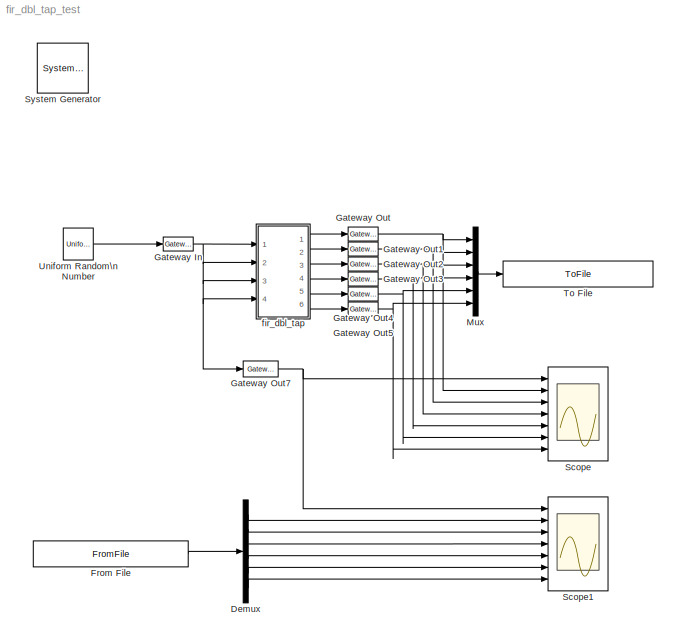
MODEL fir_dbl_tap_test
KIND model
BLOCK [Reference]  System Generator  REF=xbsIndex_r4/ System Generator
  AttributesFormatString = System\\nGenerator
  FunctionWithSeparateData = off
  Ports = []
  RTWMemSecDataConstants = Inherit from model
  RTWMemSecDataInternal = Inherit from model
  RTWMemSecDataParameters = Inherit from model
  RTWMemSecFuncExecute = Inherit from model
  RTWMemSecFuncInitTerm = Inherit from model
  ShowPortLabels = FromPortIcon
  SourceBlock = xbsIndex_r4/ System Generator
  SourceType = Xilinx System Generator Block
  SystemSampleTime = -1
  Tag = genX
  UserData = DataTag0
  UserDataPersistent = on
  block_type = sysgen
  block_version = 10.1.1
  clock_wrapper = Clock Enables
  core_generation = According to Block Masks
  dbl_ovrd = According to Block Masks
  dcm_input_clock_period = 100
  deprecated_control = off
  directory = ./netlist
  eval_field = 0
  has_advanced_control = 0
  incr_netlist = off
  infoedit = System Generator
  package = ff668
  part = xc4vsx35
  run_coregen = off
  sg_icon_stat = 51,50,-1,-1,red,beige,0,07734,right
  sg_mask_display = fprintf('','COMMENT: begin icon graphics');\npatch([0 51 51 0 ],[0 0 50 50 ],[0.93 0.92 0.86]);\npatch([12 4 16 4 12 25 29 33 47 36 25 17 29 17 25 36 47 33 29 25 12 ],[5 13 25 37 45 45 41 45 45 34 45 37 25 13 5 16 5 5 9 5 5 ],[0.6 0.2 0.25]);\nplot([0 51 51 0 0 ],[0 0 50 50 0 ]);\nfprintf('','COMMENT: end icon graphics');\nfprintf('','COMMENT: begin icon text');\nfprintf('','COMMENT: end icon text...<+5ch>
  sggui_pos = -1,-1,-1,-1
  simulink_period = 1
  speed = -10
  synthesis_tool = XST
  sysclk_period = 100
  testbench = off
  trim_vbits = Everywhere in SubSystem
  xilinxfamily = Virtex4
BLOCK [Demux] Demux
  DisplayOption = bar
  Outputs = 6
  Ports = [1, 6]
BLOCK [FromFile] From File
  FileName = fir_dbl_tap_test_reference.mat
  SampleTime = 1
BLOCK [Reference] Gateway In  REF=xbsIndex_r4/Gateway In
  LOCs = {}
  Ports = [1, 1]
  SourceBlock = xbsIndex_r4/Gateway In
  SourceType = Xilinx Gateway In Block
  arith_type = Signed  (2's comp)
  bin_pt = 15
  block_type = gatewayin
  block_version = 10.1.1
  dbl_ovrd = off
  has_advanced_control = 0
  hdl_port = on
  infoedit = Gateway in block.  Converts inputs of type Simulink integer, double and fixed point to  Xilinx fixed point type.<P><P>Hardware notes:  In hardware these blocks become top level input ports.
  locs_specified = off
  n_bits = 16
  overflow = Wrap
  period = 1
  quantization = Truncate
  sg_icon_stat = 30,14,1,1,white,yellow,0,00d3666e,right,
  sg_mask_display = fprintf('','COMMENT: begin icon graphics');\npatch([0 1 1 0 ],[0 0 1 1 ],[0.95 0.93 0.65]);\npatch([0.366667 0.3 0.4 0.3 0.366667 0.5 0.533333 0.566667 0.7 0.6 0.5 0.433333 0.533333 0.433333 0.5 0.6 0.7 0.566667 0.533333 0.5 0.366667 ],[0.142857 0.285714 0.5 0.714286 0.857143 0.857143 0.785714 0.857143 0.857143 0.642857 0.857143 0.714286 0.5 0.285714 0.142857 0.357143 0.142857 0.142857 0.214286 0....<+320ch>
  sggui_pos = 2020,73,407,458
  timing_constraint = None
  xl_area = [0,0,0,0,0,0,0]
  xl_use_area = off
BLOCK [Reference] Gateway Out  REF=xbsIndex_r4/Gateway Out
  LOCs = {}
  Ports = [1, 1]
  SourceBlock = xbsIndex_r4/Gateway Out
  SourceType = Xilinx Gateway Out Block
  block_type = gatewayout
  block_version = 10.1.1
  has_advanced_control = 0
  hdl_port = on
  infoedit = Gateway out block.  Converts Xilinx fixed point inputs into ouputs of type Simulink integer, double, or fixed point.<P><P>Hardware notes:  In hardware these blocks become top level output ports or are discarded, depending on how they are configured.  <repeated x6 — deduplicated; at blocks: Gateway Out, Gateway Out1, Gateway Out2, Gateway Out3, Gateway Out4, Gateway Out5>
  locs_specified = off
  sg_icon_stat = 30,14,1,1,white,yellow,0,cc31b7ac,right,
  sg_mask_display = fprintf('','COMMENT: begin icon graphics');\npatch([0 1 1 0 ],[0 0 1 1 ],[0.95 0.93 0.65]);\npatch([0.366667 0.3 0.4 0.3 0.366667 0.5 0.533333 0.566667 0.7 0.6 0.5 0.433333 0.533333 0.433333 0.5 0.6 0.7 0.566667 0.533333 0.5 0.366667 ],[0.142857 0.285714 0.5 0.714286 0.857143 0.857143 0.785714 0.857143 0.857143 0.642857 0.857143 0.714286 0.5 0.285714 0.142857 0.357143 0.142857 0.142857 0.214286 0....<+321ch>  <repeated x6 — deduplicated; at blocks: Gateway Out, Gateway Out1, Gateway Out2, Gateway Out3, Gateway Out4, Gateway Out5>
  sggui_pos = -1,-1,-1,-1
  timing_constraint = None
  xl_area = [0,0,0,0,0,0,0]
  xl_use_area = off
BLOCK [Reference] Gateway Out1  REF=xbsIndex_r4/Gateway Out
  LOCs = {}
  Ports = [1, 1]
  SourceBlock = xbsIndex_r4/Gateway Out
  SourceType = Xilinx Gateway Out Block
  block_type = gatewayout
  block_version = 10.1.1
  has_advanced_control = 0
  hdl_port = on
  locs_specified = off
  sg_icon_stat = 30,14,1,1,white,yellow,0,cc31b7ac,right,
  sggui_pos = -1,-1,-1,-1
  timing_constraint = None
  xl_area = [0,0,0,0,0,0,0]
  xl_use_area = off
BLOCK [Reference] Gateway Out2  REF=xbsIndex_r4/Gateway Out
  LOCs = {}
  Ports = [1, 1]
  SourceBlock = xbsIndex_r4/Gateway Out
  SourceType = Xilinx Gateway Out Block
  block_type = gatewayout
  block_version = 10.1.1
  has_advanced_control = 0
  hdl_port = on
  locs_specified = off
  sg_icon_stat = 30,14,1,1,white,yellow,0,cc31b7ac,right,
  sggui_pos = -1,-1,-1,-1
  timing_constraint = None
  xl_area = [0,0,0,0,0,0,0]
  xl_use_area = off
BLOCK [Reference] Gateway Out3  REF=xbsIndex_r4/Gateway Out
  LOCs = {}
  Ports = [1, 1]
  SourceBlock = xbsIndex_r4/Gateway Out
  SourceType = Xilinx Gateway Out Block
  block_type = gatewayout
  block_version = 10.1.1
  has_advanced_control = 0
  hdl_port = on
  locs_specified = off
  sg_icon_stat = 30,14,1,1,white,yellow,0,cc31b7ac,right,
  sggui_pos = -1,-1,-1,-1
  timing_constraint = None
  xl_area = [0,0,0,0,0,0,0]
  xl_use_area = off
BLOCK [Reference] Gateway Out4  REF=xbsIndex_r4/Gateway Out
  LOCs = {}
  Ports = [1, 1]
  SourceBlock = xbsIndex_r4/Gateway Out
  SourceType = Xilinx Gateway Out Block
  block_type = gatewayout
  block_version = 10.1.1
  has_advanced_control = 0
  hdl_port = on
  locs_specified = off
  sg_icon_stat = 30,14,1,1,white,yellow,0,cc31b7ac,right,
  sggui_pos = -1,-1,-1,-1
  timing_constraint = None
  xl_area = [0,0,0,0,0,0,0]
  xl_use_area = off
BLOCK [Reference] Gateway Out5  REF=xbsIndex_r4/Gateway Out
  LOCs = {}
  Ports = [1, 1]
  SourceBlock = xbsIndex_r4/Gateway Out
  SourceType = Xilinx Gateway Out Block
  block_type = gatewayout
  block_version = 10.1.1
  has_advanced_control = 0
  hdl_port = on
  locs_specified = off
  sg_icon_stat = 30,14,1,1,white,yellow,0,cc31b7ac,right,
  sggui_pos = -1,-1,-1,-1
  timing_constraint = None
  xl_area = [0,0,0,0,0,0,0]
  xl_use_area = off
BLOCK [Reference] Gateway Out7  REF=xbsIndex_r4/Gateway Out
  LOCs = {}
  Ports = [1, 1]
  SourceBlock = xbsIndex_r4/Gateway Out
  SourceType = Xilinx Gateway Out Block
  block_type = gatewayout
  block_version = 11.4
  has_advanced_control = 0
  hdl_port = on
  infoedit = Gateway out block.  Converts Xilinx fixed point inputs into ouputs of type Simulink integer, double, or fixed point.<br><br>Hardware notes:  In hardware these blocks become top level output ports or are discarded, depending on how they are configured.
  locs_specified = off
  sg_icon_stat = 35,16,1,1,white,yellow,0,cc31b7ac,right,
  sg_mask_display = fprintf('','COMMENT: begin icon graphics');\npatch([0 1 1 0 ],[0 0 1 1 ],[0.95 0.93 0.65]);\npatch([0.4 0.314286 0.428571 0.314286 0.4 0.514286 0.542857 0.571429 0.714286 0.6 0.514286 0.457143 0.571429 0.457143 0.514286 0.6 0.714286 0.571429 0.542857 0.514286 0.4 ],[0.125 0.3125 0.5625 0.8125 1 1 0.9375 1 1 0.75 0.9375 0.8125 0.5625 0.3125 0.1875 0.375 0.125 0.125 0.1875 0.125 0.125 ],[0.98 0.96 0...<+291ch>
  sggui_pos = -1,-1,-1,-1
  timing_constraint = None
  xl_area = [0,0,0,0,0,0,0]
  xl_use_area = off
BLOCK [Mux] Mux
  DisplayOption = bar
  Inputs = 6
  Ports = [6, 1]
BLOCK [Scope] Scope
  DataFormat = StructureWithTime
  Floating = off
  NumInputPorts = 7
  Ports = [7]
  SampleTime = 0
  YMax = 5~5~5~5~5~5~5
  YMin = -5~-5~-5~-5~-5~-5~-5
  ZoomMode = yonly
BLOCK [Scope] Scope1
  DataFormat = StructureWithTime
  Floating = off
  NumInputPorts = 7
  Ports = [7]
  SampleTime = 0
  SaveName = ScopeData1
  YMax = 5~5~5~5~5~5~5
  YMin = -5~-5~-5~-5~-5~-5~-5
  ZoomMode = yonly
BLOCK [ToFile] To File
  Filename = fir_dbl_tap_test_output.mat
  MatrixName = output
BLOCK [UniformRandomNumber] Uniform Random\nNumber
  SampleTime = 1
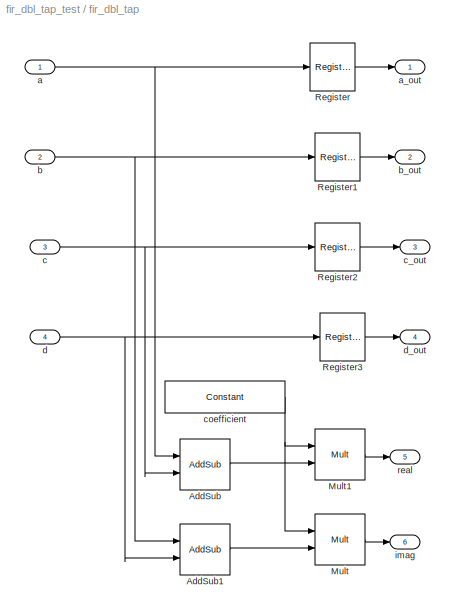
BLOCK [SubSystem] fir_dbl_tap
  FunctionWithSeparateData = off
  MaskCallbackString = ||||
  MaskEnableString = on,on,on,on,on
  MaskHelp = eval('xlWeb(''http://casper.berkeley.edu/wiki/Fir_dbl_tap'')')
  MaskHideContents = off
  MaskIconFrame = on
  MaskIconOpaque = on
  MaskIconRotate = none
  MaskIconUnits = autoscale
  MaskPromptString = factor|Add latency|Mult latency|Coefficient bit width|Coefficient binary point
  MaskSelfModifiable = on
  MaskStyleString = edit,edit,edit,edit,edit
  MaskTabNameString = ,,,,
  MaskToolTipString = on,on,on,on,on
  MaskTunableValueString = on,on,on,on,on
  MaskType = fir_dbl_tap
  MaskValueString = 0.1234|3|4|18|17
  MaskVarAliasString = ,,,,
  MaskVariables = factor=@1;add_latency=@2;mult_latency=@3;coeff_bit_width=@4;coeff_bin_pt=@5;
  MaskVisibilityString = on,on,on,on,on
  MinAlgLoopOccurrences = off
  Opaque = off
  Ports = [4, 6]
  PropExecContextOutsideSubsystem = off
  RTWSystemCode = Auto
  RequestExecContextInheritance = off
BLOCK [Reference] fir_dbl_tap/AddSub  REF=xbsIndex_r4/AddSub
  Ports = [2, 1]
  SourceBlock = xbsIndex_r4/AddSub
  SourceType = Xilinx Adder/Subtracter Block
  arith_type = Signed  (2's comp)
  bin_pt = 16
  block_type = addsub
  block_version = 9.2.01
  dbl_ovrd = off
  en = off
  has_advanced_control = 0
  hw_selection = Fabric
  latency = add_latency
  mode = Addition
  n_bits = 18
  overflow = Wrap
  pipelined = off
  precision = Full
  quantization = Truncate
  sg_icon_stat = 50,51,2,1,white,blue,0,ffb74d4c,right,
  sg_mask_display = fprintf('','COMMENT: begin icon graphics');\npatch([0 1 1 0 ],[0 0 1 1 ],[0.77 0.82 0.91]);\npatch([0.22 0.06 0.3 0.06 0.22 0.48 0.56 0.64 0.92 0.7 0.48 0.32 0.56 0.32 0.48 0.7 0.92 0.64 0.56 0.48 0.22 ],[0.117647 0.27451 0.509804 0.745098 0.901961 0.901961 0.823529 0.901961 0.901961 0.686275 0.901961 0.745098 0.509804 0.27451 0.117647 0.333333 0.117647 0.117647 0.196078 0.117647 0.117647 ],[0.98 ...<+397ch>
  sggui_pos = 20,20,348,344
  use_behavioral_HDL = on
  use_carryin = off
  use_carryout = off
  use_rpm = on
  xl_area = [0, 0, 0, 0, 0, 0, 0]
  xl_use_area = off
BLOCK [Reference] fir_dbl_tap/AddSub1  REF=xbsIndex_r4/AddSub
  Ports = [2, 1]
  SourceBlock = xbsIndex_r4/AddSub
  SourceType = Xilinx Adder/Subtracter Block
  arith_type = Signed  (2's comp)
  bin_pt = 16
  block_type = addsub
  block_version = 9.2.01
  dbl_ovrd = off
  en = off
  has_advanced_control = 0
  hw_selection = Fabric
  latency = add_latency
  mode = Addition
  n_bits = 18
  overflow = Wrap
  pipelined = off
  precision = Full
  quantization = Truncate
  sg_icon_stat = 50,51,2,1,white,blue,0,ffb74d4c,right,
  sg_mask_display = fprintf('','COMMENT: begin icon graphics');\npatch([0 1 1 0 ],[0 0 1 1 ],[0.77 0.82 0.91]);\npatch([0.22 0.06 0.3 0.06 0.22 0.48 0.56 0.64 0.92 0.7 0.48 0.32 0.56 0.32 0.48 0.7 0.92 0.64 0.56 0.48 0.22 ],[0.117647 0.27451 0.509804 0.745098 0.901961 0.901961 0.823529 0.901961 0.901961 0.686275 0.901961 0.745098 0.509804 0.27451 0.117647 0.333333 0.117647 0.117647 0.196078 0.117647 0.117647 ],[0.98 ...<+397ch>
  sggui_pos = 50,50,348,344
  use_behavioral_HDL = on
  use_carryin = off
  use_carryout = off
  use_rpm = on
  xl_area = [0, 0, 0, 0, 0, 0, 0]
  xl_use_area = off
BLOCK [Reference] fir_dbl_tap/Mult  REF=xbsIndex_r4/Mult
  Ports = [2, 1]
  SourceBlock = xbsIndex_r4/Mult
  SourceType = Xilinx Multiplier Block
  arith_type = Signed  (2's comp)
  bin_pt = 17
  block_type = mult
  block_version = 9.2.01
  dbl_ovrd = off
  en = off
  has_advanced_control = 0
  infoedit = Hardware notes: To use the internal pipeline stage of the dedicated multiplier you must select 'Pipeline for maximum performance'.
  latency = mult_latency
  n_bits = 18
  opt = Speed
  optimum_pipeline = off
  overflow = Wrap
  pipeline = on
  placement_style = Rectangular shape
  precision = Full
  quantization = Truncate
  sg_icon_stat = 50,51,2,1,white,blue,0,b3b6dbf7,right,
  sg_mask_display = fprintf('','COMMENT: begin icon graphics');\npatch([0 1 1 0 ],[0 0 1 1 ],[0.77 0.82 0.91]);\npatch([0.22 0.06 0.3 0.06 0.22 0.48 0.56 0.64 0.92 0.7 0.48 0.32 0.56 0.32 0.48 0.7 0.92 0.64 0.56 0.48 0.22 ],[0.117647 0.27451 0.509804 0.745098 0.901961 0.901961 0.823529 0.901961 0.901961 0.686275 0.901961 0.745098 0.509804 0.27451 0.117647 0.333333 0.117647 0.117647 0.196078 0.117647 0.117647 ],[0.98 ...<+375ch>
  sggui_pos = 50,50,348,433
  use_behavioral_HDL = on
  use_embedded = on
  use_rpm = off
  xl_area = [0, 0, 0, 0, 0, 0, 0]
  xl_use_area = off
BLOCK [Reference] fir_dbl_tap/Mult1  REF=xbsIndex_r4/Mult
  Ports = [2, 1]
  SourceBlock = xbsIndex_r4/Mult
  SourceType = Xilinx Multiplier Block
  arith_type = Signed  (2's comp)
  bin_pt = 17
  block_type = mult
  block_version = 9.2.01
  dbl_ovrd = off
  en = off
  has_advanced_control = 0
  infoedit = Hardware notes: To use the internal pipeline stage of the dedicated multiplier you must select 'Pipeline for maximum performance'.
  latency = mult_latency
  n_bits = 18
  opt = Speed
  optimum_pipeline = off
  overflow = Wrap
  pipeline = on
  placement_style = Rectangular shape
  precision = Full
  quantization = Truncate
  sg_icon_stat = 50,51,2,1,white,blue,0,b3b6dbf7,right,
  sg_mask_display = fprintf('','COMMENT: begin icon graphics');\npatch([0 1 1 0 ],[0 0 1 1 ],[0.77 0.82 0.91]);\npatch([0.22 0.06 0.3 0.06 0.22 0.48 0.56 0.64 0.92 0.7 0.48 0.32 0.56 0.32 0.48 0.7 0.92 0.64 0.56 0.48 0.22 ],[0.117647 0.27451 0.509804 0.745098 0.901961 0.901961 0.823529 0.901961 0.901961 0.686275 0.901961 0.745098 0.509804 0.27451 0.117647 0.333333 0.117647 0.117647 0.196078 0.117647 0.117647 ],[0.98 ...<+375ch>
  sggui_pos = 50,50,348,433
  use_behavioral_HDL = on
  use_embedded = on
  use_rpm = off
  xl_area = [0, 0, 0, 0, 0, 0, 0]
  xl_use_area = off
BLOCK [Reference] fir_dbl_tap/Register  REF=xbsIndex_r4/Register
  Ports = [1, 1]
  SourceBlock = xbsIndex_r4/Register
  SourceType = Xilinx Register Block
  block_type = register
  block_version = 9.2.01
  dbl_ovrd = off
  en = off
  has_advanced_control = 0
  init = 0
  rst = off
  sg_icon_stat = 45,48,1,1,white,blue,0,ef2275f7,right,
  sg_mask_display = fprintf('','COMMENT: begin icon graphics');\npatch([0 1 1 0 ],[0 0 1 1 ],[0.77 0.82 0.91]);\npatch([0.222222 0.0666667 0.311111 0.0666667 0.222222 0.488889 0.555556 0.622222 0.911111 0.688889 0.466667 0.311111 0.555556 0.311111 0.466667 0.688889 0.911111 0.622222 0.555556 0.488889 0.222222 ],[0.125 0.270833 0.5 0.729167 0.875 0.875 0.8125 0.875 0.875 0.666667 0.875 0.729167 0.5 0.270833 0.125 0.33...<+355ch>  <repeated x4 — deduplicated; at blocks: Register, Register1, Register2, Register3>
  sggui_pos = 20,20,348,193
  xl_area = [0, 0, 0, 0, 0, 0, 0]
  xl_use_area = off
BLOCK [Reference] fir_dbl_tap/Register1  REF=xbsIndex_r4/Register
  Ports = [1, 1]
  SourceBlock = xbsIndex_r4/Register
  SourceType = Xilinx Register Block
  block_type = register
  block_version = 9.2.01
  dbl_ovrd = off
  en = off
  has_advanced_control = 0
  init = 0
  rst = off
  sg_icon_stat = 45,48,1,1,white,blue,0,ef2275f7,right,
  sggui_pos = -1,-1,-1,-1
  xl_area = [0, 0, 0, 0, 0, 0, 0]
  xl_use_area = off
BLOCK [Reference] fir_dbl_tap/Register2  REF=xbsIndex_r4/Register
  Ports = [1, 1]
  SourceBlock = xbsIndex_r4/Register
  SourceType = Xilinx Register Block
  block_type = register
  block_version = 9.2.01
  dbl_ovrd = off
  en = off
  has_advanced_control = 0
  init = 0
  rst = off
  sg_icon_stat = 45,48,1,1,white,blue,0,ef2275f7,right,
  sggui_pos = -1,-1,-1,-1
  xl_area = [0, 0, 0, 0, 0, 0, 0]
  xl_use_area = off
BLOCK [Reference] fir_dbl_tap/Register3  REF=xbsIndex_r4/Register
  Ports = [1, 1]
  SourceBlock = xbsIndex_r4/Register
  SourceType = Xilinx Register Block
  block_type = register
  block_version = 9.2.01
  dbl_ovrd = off
  en = off
  has_advanced_control = 0
  init = 0
  rst = off
  sg_icon_stat = 45,48,1,1,white,blue,0,ef2275f7,right,
  sggui_pos = 20,20,348,193
  xl_area = [0, 0, 0, 0, 0, 0, 0]
  xl_use_area = off
BLOCK [Inport] fir_dbl_tap/a
  IconDisplay = Port number
  OutDataType = sfix(16)
  OutScaling = 2^0
BLOCK [Outport] fir_dbl_tap/a_out
  IconDisplay = Port number
  OutDataType = sfix(16)
  OutScaling = 2^0
BLOCK [Inport] fir_dbl_tap/b
  IconDisplay = Port number
  OutDataType = sfix(16)
  OutScaling = 2^0
  Port = 2
BLOCK [Outport] fir_dbl_tap/b_out
  IconDisplay = Port number
  OutDataType = sfix(16)
  OutScaling = 2^0
  Port = 2
BLOCK [Inport] fir_dbl_tap/c
  IconDisplay = Port number
  OutDataType = sfix(16)
  OutScaling = 2^0
  Port = 3
BLOCK [Outport] fir_dbl_tap/c_out
  IconDisplay = Port number
  OutDataType = sfix(16)
  OutScaling = 2^0
  Port = 3
BLOCK [Reference] fir_dbl_tap/coefficient  REF=xbsIndex_r4/Constant
  Ports = [0, 1]
  SourceBlock = xbsIndex_r4/Constant
  SourceType = Xilinx Constant Block Block
  arith_type = Signed (2's comp)
  bin_pt = coeff_bin_pt
  block_type = constant
  block_version = 9.2.01
  carry = CIN
  const = factor
  dbl_ovrd = off
  dsp48_infoedit = The use of this block for DSP48 instructions is deprecated.  Please use the Opmode block.
  equ = P=C
  explicit_period = on
  has_advanced_control = 0
  inp1 = P
  inp2 = PCIN>>17
  n_bits = coeff_bit_width
  opr = +
  opselect = C
  period = 1
  sg_icon_stat = 120,32,1,1,white,blue,0,ca69c290,right
  sg_mask_display = fprintf('','COMMENT: begin icon graphics');\npatch([0 55 55 0 ],[0 0 26 26 ],[0.77 0.82 0.91]);\npatch([20 16 22 16 20 27 29 31 38 32 26 22 28 22 26 32 38 31 29 27 20 ],[3 7 13 19 23 23 21 23 23 17 23 19 13 7 3 9 3 3 5 3 3 ],[0.98 0.96 0.92]);\nplot([0 55 55 0 0 ],[0 0 26 26 0 ]);\nfprintf('','COMMENT: end icon graphics');\nfprintf('','COMMENT: begin icon text');\ncolor('black');port_label('output...<+68ch>
  sggui_pos = 20,20,400,346
BLOCK [Inport] fir_dbl_tap/d
  IconDisplay = Port number
  OutDataType = sfix(16)
  OutScaling = 2^0
  Port = 4
BLOCK [Outport] fir_dbl_tap/d_out
  IconDisplay = Port number
  OutDataType = sfix(16)
  OutScaling = 2^0
  Port = 4
BLOCK [Outport] fir_dbl_tap/imag
  IconDisplay = Port number
  OutDataType = sfix(16)
  OutScaling = 2^0
  Port = 6
BLOCK [Outport] fir_dbl_tap/real
  IconDisplay = Port number
  OutDataType = sfix(16)
  OutScaling = 2^0
  Port = 5
LINE Demux:1 -> Scope1:2
LINE Demux:2 -> Scope1:3
LINE Demux:3 -> Scope1:4
LINE Demux:4 -> Scope1:5
LINE Demux:5 -> Scope1:6
LINE Demux:6 -> Scope1:7
LINE From File:1 -> Demux:1
NET Gateway In:1 -> Gateway Out7:1, fir_dbl_tap:1, fir_dbl_tap:2, fir_dbl_tap:3, fir_dbl_tap:4
NET Gateway Out1:1 -> Mux:2, Scope:3
NET Gateway Out2:1 -> Mux:3, Scope:4
NET Gateway Out3:1 -> Mux:4, Scope:5
NET Gateway Out4:1 -> Mux:5, Scope:6
NET Gateway Out5:1 -> Mux:6, Scope:7
NET Gateway Out7:1 -> Scope1:1, Scope:1
NET Gateway Out:1 -> Mux:1, Scope:2
LINE Mux:1 -> To File:1
LINE Uniform Random\nNumber:1 -> Gateway In:1
LINE fir_dbl_tap/AddSub1:1 -> fir_dbl_tap/Mult:2
LINE fir_dbl_tap/AddSub:1 -> fir_dbl_tap/Mult1:2
LINE fir_dbl_tap/Mult1:1 -> fir_dbl_tap/real:1
LINE fir_dbl_tap/Mult:1 -> fir_dbl_tap/imag:1
LINE fir_dbl_tap/Register1:1 -> fir_dbl_tap/b_out:1
LINE fir_dbl_tap/Register2:1 -> fir_dbl_tap/c_out:1
LINE fir_dbl_tap/Register3:1 -> fir_dbl_tap/d_out:1
LINE fir_dbl_tap/Register:1 -> fir_dbl_tap/a_out:1
NET fir_dbl_tap/a:1 -> fir_dbl_tap/AddSub:1, fir_dbl_tap/Register:1
NET fir_dbl_tap/b:1 -> fir_dbl_tap/AddSub1:1, fir_dbl_tap/Register1:1
NET fir_dbl_tap/c:1 -> fir_dbl_tap/AddSub:2, fir_dbl_tap/Register2:1
NET fir_dbl_tap/coefficient:1 -> fir_dbl_tap/Mult1:1, fir_dbl_tap/Mult:1
NET fir_dbl_tap/d:1 -> fir_dbl_tap/AddSub1:2, fir_dbl_tap/Register3:1
LINE fir_dbl_tap:1 -> Gateway Out:1
LINE fir_dbl_tap:2 -> Gateway Out1:1
LINE fir_dbl_tap:3 -> Gateway Out2:1
LINE fir_dbl_tap:4 -> Gateway Out3:1
LINE fir_dbl_tap:5 -> Gateway Out4:1
LINE fir_dbl_tap:6 -> Gateway Out5:1
note: NET lines group one-source signal fan-out (src -> all destinations, sorted); 1:1 wires keep LINE
